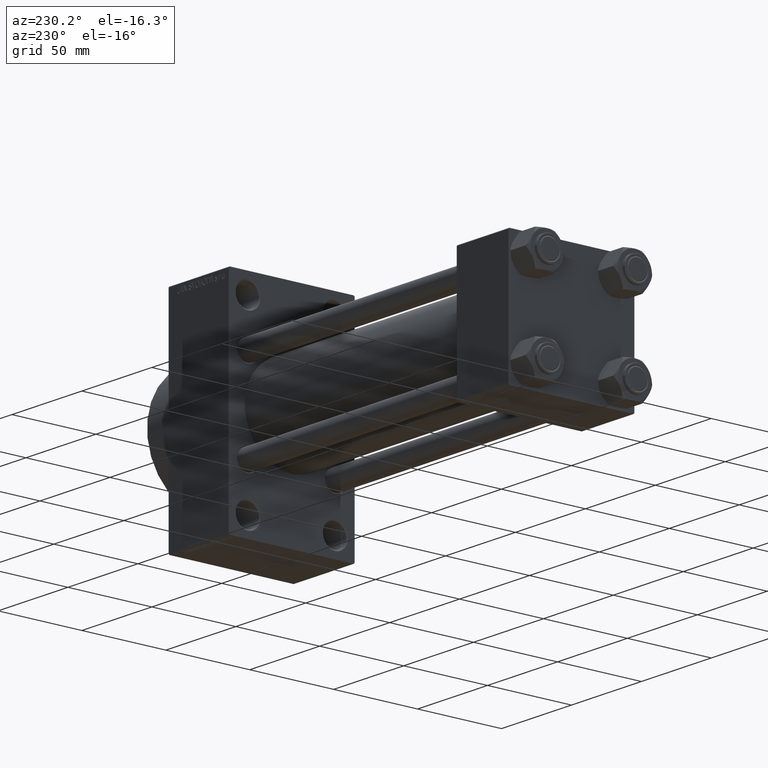
[diagram: clean part render]
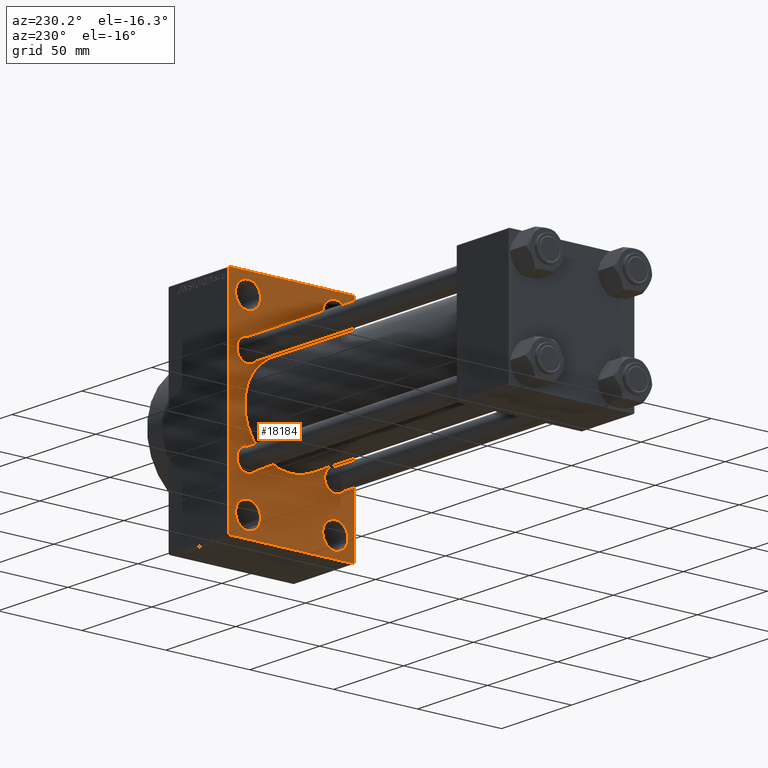
[diagram: same view with one face highlighted and labeled with its STEP entity id]
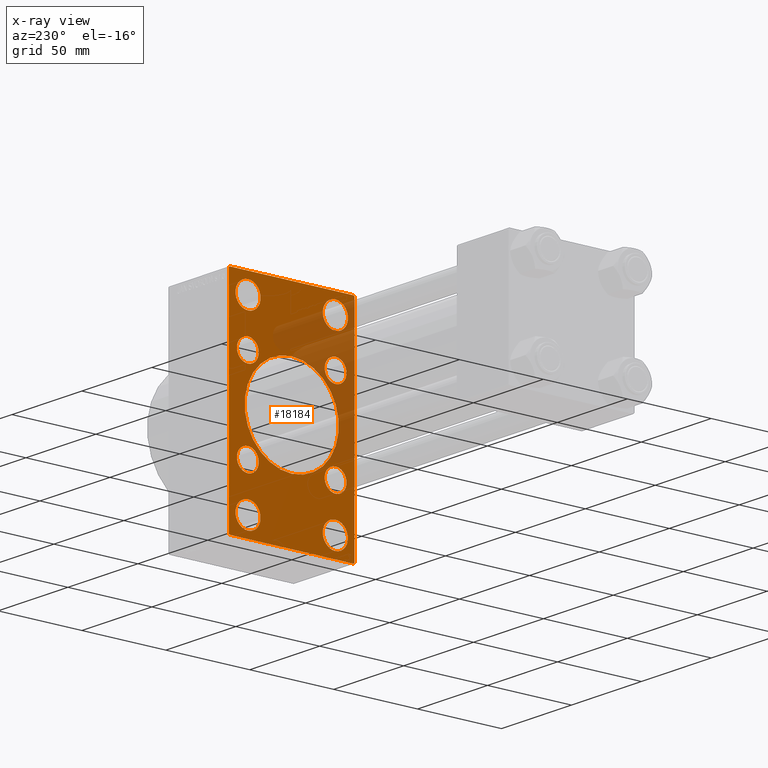
[diagram: x-ray of the same camera — body ghosted, the highlighted face saturated]
A machine part, auxiliary view. The second image highlights one B-rep face of the part: STEP entity #18184.
The next image is the same camera in x-ray: the body ghosted, the highlighted face saturated — about 23% of this face is hidden behind the body in this view.
In plain terms, the highlighted planar face has unit normal (-1, 0, 0).
Its self-contained STEP definition (entity closure, byte-faithful):
#70 = VECTOR ( 'NONE', #35666, 1000.000000000000000 ) ;
#422 = EDGE_CURVE ( 'NONE', #27337, #9450, #12563, .T. ) ;
#612 = CARTESIAN_POINT ( 'NONE',  ( 200.0000000000000000, 26.00000000000000000, -52.49999999999999289 ) ) ;
#889 = DIRECTION ( 'NONE',  ( 0.000000000000000000, -5.421010862427522170E-17, -1.000000000000000000 ) ) ;
#1216 = ORIENTED_EDGE ( 'NONE', *, *, #25462, .F. ) ;
#1446 = DIRECTION ( 'NONE',  ( 1.000000000000000000, 0.000000000000000000, 0.000000000000000000 ) ) ;
#1869 = CIRCLE ( 'NONE', #42250, 7.500000000000007105 ) ;
#1909 = EDGE_CURVE ( 'NONE', #15265, #4438, #3428, .T. ) ;
#2166 = CARTESIAN_POINT ( 'NONE',  ( 200.0000000000000000, -37.49999999999999289, 63.50000000000000000 ) ) ;
#2232 = EDGE_CURVE ( 'NONE', #34917, #8458, #10821, .T. ) ;
#2305 = CARTESIAN_POINT ( 'NONE',  ( 200.0000000000000000, 50.49999999999998579, 50.49999999999998579 ) ) ;
#2389 = DIRECTION ( 'NONE',  ( 1.000000000000000000, -0.000000000000000000, 0.000000000000000000 ) ) ;
#2414 = AXIS2_PLACEMENT_3D ( 'NONE', #13829, #2389, #27920 ) ;
#2847 = DIRECTION ( 'NONE',  ( 1.000000000000000000, -0.000000000000000000, 0.000000000000000000 ) ) ;
#2925 = DIRECTION ( 'NONE',  ( 1.000000000000000000, -0.000000000000000000, 0.000000000000000000 ) ) ;
#3276 = EDGE_LOOP ( 'NONE', ( #24197, #15807 ) ) ;
#3322 = DIRECTION ( 'NONE',  ( -0.000000000000000000, 0.7071067811865524577, 0.7071067811865426878 ) ) ;
#3428 = CIRCLE ( 'NONE', #15628, 6.500000000000008882 ) ;
#3592 = VERTEX_POINT ( 'NONE', #16032 ) ;
#3644 = FACE_BOUND ( 'NONE', #3276, .T. ) ;
#4114 = FACE_BOUND ( 'NONE', #25233, .T. ) ;
#4207 = EDGE_CURVE ( 'NONE', #4438, #15265, #17982, .T. ) ;
#4438 = VERTEX_POINT ( 'NONE', #44703 ) ;
#4572 = DIRECTION ( 'NONE',  ( 0.000000000000000000, -0.7071067811865376918, 0.7071067811865573427 ) ) ;
#4778 = CARTESIAN_POINT ( 'NONE',  ( 200.0000000000000000, -37.49999999999999289, -63.50000000000002842 ) ) ;
#4882 = DIRECTION ( 'NONE',  ( 1.000000000000000000, -0.000000000000000000, 0.000000000000000000 ) ) ;
#4891 = VERTEX_POINT ( 'NONE', #31202 ) ;
#5235 = CIRCLE ( 'NONE', #31934, 6.500000000000008882 ) ;
#5236 = CIRCLE ( 'NONE', #44114, 7.500000000000007105 ) ;
#5297 = CIRCLE ( 'NONE', #16094, 7.500000000000007105 ) ;
#5373 = AXIS2_PLACEMENT_3D ( 'NONE', #15335, #37066, #18680 ) ;
#5473 = AXIS2_PLACEMENT_3D ( 'NONE', #20763, #13356, #38691 ) ;
#5607 = EDGE_LOOP ( 'NONE', ( #6280, #40809 ) ) ;
#5671 = DIRECTION ( 'NONE',  ( 0.000000000000000000, 0.000000000000000000, -1.000000000000000000 ) ) ;
#5781 = DIRECTION ( 'NONE',  ( 0.000000000000000000, 0.000000000000000000, 1.000000000000000000 ) ) ;
#5864 = CARTESIAN_POINT ( 'NONE',  ( 200.0000000000000000, 37.00000000000000000, 63.99999999999998579 ) ) ;
#6280 = ORIENTED_EDGE ( 'NONE', *, *, #34890, .T. ) ;
#6469 = DIRECTION ( 'NONE',  ( 1.000000000000000000, -0.000000000000000000, 0.000000000000000000 ) ) ;
#6493 = DIRECTION ( 'NONE',  ( 1.000000000000000000, -0.000000000000000000, 0.000000000000000000 ) ) ;
#6598 = ORIENTED_EDGE ( 'NONE', *, *, #21428, .T. ) ;
#6963 = AXIS2_PLACEMENT_3D ( 'NONE', #39439, #12952, #5781 ) ;
#7441 = VERTEX_POINT ( 'NONE', #24727 ) ;
#7788 = DIRECTION ( 'NONE',  ( 1.000000000000000000, -0.000000000000000000, 0.000000000000000000 ) ) ;
#8051 = AXIS2_PLACEMENT_3D ( 'NONE', #25712, #7788, #36935 ) ;
#8157 = FACE_BOUND ( 'NONE', #27494, .T. ) ;
#8458 = VERTEX_POINT ( 'NONE', #25691 ) ;
#8522 = CARTESIAN_POINT ( 'NONE',  ( 200.0000000000000000, -26.14999999999999147, 26.15000000000000924 ) ) ;
#8851 = ORIENTED_EDGE ( 'NONE', *, *, #4207, .T. ) ;
#9450 = VERTEX_POINT ( 'NONE', #19082 ) ;
#9478 = CARTESIAN_POINT ( 'NONE',  ( 200.0000000000000000, -37.49999999999999289, 63.99999999999997158 ) ) ;
#9499 = VERTEX_POINT ( 'NONE', #31870 ) ;
#9583 = EDGE_CURVE ( 'NONE', #31777, #29911, #37898, .T. ) ;
#9755 = ORIENTED_EDGE ( 'NONE', *, *, #11821, .T. ) ;
#9762 = EDGE_CURVE ( 'NONE', #30605, #23036, #41754, .T. ) ;
#9892 = VECTOR ( 'NONE', #4572, 1000.000000000000114 ) ;
#9992 = LINE ( 'NONE', #39616, #46538 ) ;
#10090 = ORIENTED_EDGE ( 'NONE', *, *, #14929, .T. ) ;
#10237 = EDGE_CURVE ( 'NONE', #23503, #4891, #21383, .T. ) ;
#10298 = DIRECTION ( 'NONE',  ( 0.000000000000000000, 0.000000000000000000, 1.000000000000000000 ) ) ;
#10553 = ORIENTED_EDGE ( 'NONE', *, *, #19358, .F. ) ;
#10821 = LINE ( 'NONE', #24685, #37796 ) ;
#11082 = VERTEX_POINT ( 'NONE', #41076 ) ;
#11214 = VECTOR ( 'NONE', #24251, 1000.000000000000114 ) ;
#11513 = DIRECTION ( 'NONE',  ( 0.000000000000000000, 0.000000000000000000, 1.000000000000000000 ) ) ;
#11642 = EDGE_CURVE ( 'NONE', #23036, #30605, #24295, .T. ) ;
#11821 = EDGE_CURVE ( 'NONE', #18621, #7441, #5235, .T. ) ;
#12079 = LINE ( 'NONE', #18790, #23586 ) ;
#12174 = CARTESIAN_POINT ( 'NONE',  ( 200.0000000000000000, 26.00000000000000000, 60.00000000000000000 ) ) ;
#12229 = CARTESIAN_POINT ( 'NONE',  ( 200.0000000000000000, -26.14999999999999147, -26.15000000000000924 ) ) ;
#12397 = CARTESIAN_POINT ( 'NONE',  ( 200.0000000000000000, -26.14999999999999147, -19.65000000000000213 ) ) ;
#12416 = CARTESIAN_POINT ( 'NONE',  ( 200.0000000000000000, -2.602085213965210642E-15, 0.000000000000000000 ) ) ;
#12563 = CIRCLE ( 'NONE', #23237, 6.500000000000008882 ) ;
#12896 = ORIENTED_EDGE ( 'NONE', *, *, #25128, .T. ) ;
#12952 = DIRECTION ( 'NONE',  ( 1.000000000000000000, -0.000000000000000000, 0.000000000000000000 ) ) ;
#13275 = ORIENTED_EDGE ( 'NONE', *, *, #16701, .T. ) ;
#13356 = DIRECTION ( 'NONE',  ( 1.000000000000000000, -0.000000000000000000, 0.000000000000000000 ) ) ;
#13559 = ORIENTED_EDGE ( 'NONE', *, *, #43589, .T. ) ;
#13574 = DIRECTION ( 'NONE',  ( 0.000000000000000000, 0.000000000000000000, 1.000000000000000000 ) ) ;
#13741 = CARTESIAN_POINT ( 'NONE',  ( 200.0000000000000000, -25.99999999999999645, 60.00000000000000711 ) ) ;
#13795 = EDGE_CURVE ( 'NONE', #9450, #27337, #22766, .T. ) ;
#13829 = CARTESIAN_POINT ( 'NONE',  ( 200.0000000000000000, -26.14999999999999147, -26.15000000000000924 ) ) ;
#13944 = DIRECTION ( 'NONE',  ( -0.000000000000000000, -0.7071067811865574537, -0.7071067811865376918 ) ) ;
#13954 = CARTESIAN_POINT ( 'NONE',  ( 200.0000000000000000, -25.99999999999999645, -52.49999999999999289 ) ) ;
#14027 = VERTEX_POINT ( 'NONE', #2166 ) ;
#14062 = ORIENTED_EDGE ( 'NONE', *, *, #25096, .T. ) ;
#14132 = CARTESIAN_POINT ( 'NONE',  ( 200.0000000000000000, 26.14999999999999858, 26.15000000000000213 ) ) ;
#14339 = EDGE_CURVE ( 'NONE', #4891, #34917, #12079, .T. ) ;
#14499 = DIRECTION ( 'NONE',  ( 0.000000000000000000, 0.000000000000000000, 1.000000000000000000 ) ) ;
#14584 = CARTESIAN_POINT ( 'NONE',  ( 200.0000000000000000, 26.00000000000000000, 52.49999999999999289 ) ) ;
#14606 = CIRCLE ( 'NONE', #2414, 6.500000000000008882 ) ;
#14929 = EDGE_CURVE ( 'NONE', #8458, #37924, #32061, .T. ) ;
#15265 = VERTEX_POINT ( 'NONE', #32475 ) ;
#15335 = CARTESIAN_POINT ( 'NONE',  ( 200.0000000000000000, 0.000000000000000000, 0.000000000000000000 ) ) ;
#15628 = AXIS2_PLACEMENT_3D ( 'NONE', #19480, #40985, #40513 ) ;
#15736 = EDGE_CURVE ( 'NONE', #35290, #11082, #35033, .T. ) ;
#15807 = ORIENTED_EDGE ( 'NONE', *, *, #9583, .T. ) ;
#15989 = AXIS2_PLACEMENT_3D ( 'NONE', #12416, #1446, #38218 ) ;
#16032 = CARTESIAN_POINT ( 'NONE',  ( 200.0000000000000000, 26.00000000000000000, 44.99999999999998579 ) ) ;
#16094 = AXIS2_PLACEMENT_3D ( 'NONE', #28373, #2847, #13574 ) ;
#16699 = VECTOR ( 'NONE', #36341, 1000.000000000000000 ) ;
#16701 = EDGE_CURVE ( 'NONE', #37924, #35005, #23429, .T. ) ;
#16703 = CIRCLE ( 'NONE', #41119, 28.00000000000000000 ) ;
#17510 = AXIS2_PLACEMENT_3D ( 'NONE', #25477, #18087, #14499 ) ;
#17982 = CIRCLE ( 'NONE', #8051, 6.500000000000008882 ) ;
#17987 = DIRECTION ( 'NONE',  ( 1.000000000000000000, -0.000000000000000000, 0.000000000000000000 ) ) ;
#18021 = CARTESIAN_POINT ( 'NONE',  ( 200.0000000000000000, -25.99999999999999645, 52.50000000000000000 ) ) ;
#18046 = AXIS2_PLACEMENT_3D ( 'NONE', #13954, #30762, #45570 ) ;
#18087 = DIRECTION ( 'NONE',  ( 1.000000000000000000, -0.000000000000000000, 0.000000000000000000 ) ) ;
#18100 = ORIENTED_EDGE ( 'NONE', *, *, #422, .T. ) ;
#18148 = CARTESIAN_POINT ( 'NONE',  ( 200.0000000000000000, -25.99999999999999645, -44.99999999999998579 ) ) ;
#18184 = ADVANCED_FACE ( 'NONE', ( #28945, #3644, #47091, #43760, #8157, #40183, #4114, #22505, #33486, #32771 ), #22271, .T. ) ;
#18302 = VERTEX_POINT ( 'NONE', #45412 ) ;
#18513 = DIRECTION ( 'NONE',  ( 0.000000000000000000, 0.000000000000000000, -1.000000000000000000 ) ) ;
#18621 = VERTEX_POINT ( 'NONE', #12397 ) ;
#18680 = DIRECTION ( 'NONE',  ( -0.000000000000000000, 0.000000000000000000, 1.000000000000000000 ) ) ;
#18790 = CARTESIAN_POINT ( 'NONE',  ( 200.0000000000000000, 37.50000000000000000, 63.99999999999998579 ) ) ;
#18851 = EDGE_CURVE ( 'NONE', #29911, #31777, #5297, .T. ) ;
#19017 = CARTESIAN_POINT ( 'NONE',  ( 200.0000000000000000, 8.269258236473784371E-16, -28.00000000000000000 ) ) ;
#19082 = CARTESIAN_POINT ( 'NONE',  ( 200.0000000000000000, -26.14999999999999147, 19.65000000000000213 ) ) ;
#19228 = EDGE_LOOP ( 'NONE', ( #44943, #32928 ) ) ;
#19358 = EDGE_CURVE ( 'NONE', #23503, #41437, #20180, .T. ) ;
#19480 = CARTESIAN_POINT ( 'NONE',  ( 200.0000000000000000, 26.14999999999999858, -26.15000000000000213 ) ) ;
#19940 = VERTEX_POINT ( 'NONE', #19017 ) ;
#20180 = LINE ( 'NONE', #31154, #70 ) ;
#20763 = CARTESIAN_POINT ( 'NONE',  ( 200.0000000000000000, 26.00000000000000000, -52.49999999999999289 ) ) ;
#20779 = EDGE_LOOP ( 'NONE', ( #24185, #26474 ) ) ;
#21383 = LINE ( 'NONE', #2305, #11214 ) ;
#21428 = EDGE_CURVE ( 'NONE', #14027, #41437, #9992, .T. ) ;
#21835 = DIRECTION ( 'NONE',  ( 1.000000000000000000, -0.000000000000000000, 0.000000000000000000 ) ) ;
#21962 = CARTESIAN_POINT ( 'NONE',  ( 200.0000000000000000, -37.00000000000001421, 63.99999999999997158 ) ) ;
#21991 = DIRECTION ( 'NONE',  ( 0.000000000000000000, 0.000000000000000000, 1.000000000000000000 ) ) ;
#22271 = PLANE ( 'NONE',  #5373 ) ;
#22505 = FACE_BOUND ( 'NONE', #32433, .T. ) ;
#22766 = CIRCLE ( 'NONE', #41865, 6.500000000000008882 ) ;
#23036 = VERTEX_POINT ( 'NONE', #44639 ) ;
#23237 = AXIS2_PLACEMENT_3D ( 'NONE', #8522, #37196, #37440 ) ;
#23429 = LINE ( 'NONE', #34410, #9892 ) ;
#23503 = VERTEX_POINT ( 'NONE', #5864 ) ;
#23586 = VECTOR ( 'NONE', #889, 1000.000000000000000 ) ;
#23587 = EDGE_LOOP ( 'NONE', ( #10090, #13275, #1216, #6598, #10553, #26565, #31136, #42978 ) ) ;
#24185 = ORIENTED_EDGE ( 'NONE', *, *, #44292, .T. ) ;
#24197 = ORIENTED_EDGE ( 'NONE', *, *, #18851, .T. ) ;
#24251 = DIRECTION ( 'NONE',  ( 0.000000000000000000, 0.7071067811865474617, -0.7071067811865474617 ) ) ;
#24295 = CIRCLE ( 'NONE', #32684, 7.500000000000007105 ) ;
#24313 = ORIENTED_EDGE ( 'NONE', *, *, #13795, .T. ) ;
#24685 = CARTESIAN_POINT ( 'NONE',  ( 200.0000000000000000, 50.49999999999950973, -50.50000000000090949 ) ) ;
#24727 = CARTESIAN_POINT ( 'NONE',  ( 200.0000000000000000, -26.14999999999999147, -32.65000000000001990 ) ) ;
#24829 = EDGE_CURVE ( 'NONE', #3592, #44944, #44382, .T. ) ;
#25096 = EDGE_CURVE ( 'NONE', #9499, #18302, #34448, .T. ) ;
#25110 = DIRECTION ( 'NONE',  ( 0.000000000000000000, 0.000000000000000000, 1.000000000000000000 ) ) ;
#25128 = EDGE_CURVE ( 'NONE', #7441, #18621, #14606, .T. ) ;
#25233 = EDGE_LOOP ( 'NONE', ( #44478, #8851 ) ) ;
#25462 = EDGE_CURVE ( 'NONE', #14027, #35005, #28098, .T. ) ;
#25477 = CARTESIAN_POINT ( 'NONE',  ( 200.0000000000000000, 26.14999999999999858, 26.15000000000000213 ) ) ;
#25691 = CARTESIAN_POINT ( 'NONE',  ( 200.0000000000000000, 37.00000000000004974, -64.00000000000000000 ) ) ;
#25712 = CARTESIAN_POINT ( 'NONE',  ( 200.0000000000000000, 26.14999999999999858, -26.15000000000000213 ) ) ;
#25880 = DIRECTION ( 'NONE',  ( 0.000000000000000000, 0.000000000000000000, 1.000000000000000000 ) ) ;
#26474 = ORIENTED_EDGE ( 'NONE', *, *, #45052, .T. ) ;
#26565 = ORIENTED_EDGE ( 'NONE', *, *, #10237, .T. ) ;
#26629 = EDGE_LOOP ( 'NONE', ( #42504, #31895 ) ) ;
#26791 = DIRECTION ( 'NONE',  ( 0.000000000000000000, 0.000000000000000000, 1.000000000000000000 ) ) ;
#26940 = EDGE_LOOP ( 'NONE', ( #13559, #14062 ) ) ;
#27337 = VERTEX_POINT ( 'NONE', #28669 ) ;
#27494 = EDGE_LOOP ( 'NONE', ( #18100, #24313 ) ) ;
#27920 = DIRECTION ( 'NONE',  ( 0.000000000000000000, 0.000000000000000000, 1.000000000000000000 ) ) ;
#28018 = CARTESIAN_POINT ( 'NONE',  ( 200.0000000000000000, -2.602085213965210642E-15, 28.00000000000000000 ) ) ;
#28098 = LINE ( 'NONE', #9478, #36768 ) ;
#28373 = CARTESIAN_POINT ( 'NONE',  ( 200.0000000000000000, -25.99999999999999645, -52.49999999999999289 ) ) ;
#28669 = CARTESIAN_POINT ( 'NONE',  ( 200.0000000000000000, -26.14999999999999147, 32.65000000000001990 ) ) ;
#28945 = FACE_BOUND ( 'NONE', #19228, .T. ) ;
#29911 = VERTEX_POINT ( 'NONE', #18148 ) ;
#30132 = AXIS2_PLACEMENT_3D ( 'NONE', #14132, #2925, #25110 ) ;
#30136 = CARTESIAN_POINT ( 'NONE',  ( 200.0000000000000000, -25.99999999999999645, -60.00000000000000000 ) ) ;
#30605 = VERTEX_POINT ( 'NONE', #13741 ) ;
#30762 = DIRECTION ( 'NONE',  ( 1.000000000000000000, -0.000000000000000000, 0.000000000000000000 ) ) ;
#31083 = DIRECTION ( 'NONE',  ( 1.000000000000000000, -0.000000000000000000, 0.000000000000000000 ) ) ;
#31136 = ORIENTED_EDGE ( 'NONE', *, *, #14339, .T. ) ;
#31154 = CARTESIAN_POINT ( 'NONE',  ( 200.0000000000000000, 37.50000000000000000, 63.99999999999998579 ) ) ;
#31202 = CARTESIAN_POINT ( 'NONE',  ( 200.0000000000000000, 37.50000000000000000, 63.49999999999998579 ) ) ;
#31777 = VERTEX_POINT ( 'NONE', #30136 ) ;
#31870 = CARTESIAN_POINT ( 'NONE',  ( 200.0000000000000000, 26.00000000000000000, -60.00000000000000000 ) ) ;
#31895 = ORIENTED_EDGE ( 'NONE', *, *, #15736, .T. ) ;
#31934 = AXIS2_PLACEMENT_3D ( 'NONE', #12229, #31083, #26791 ) ;
#32061 = LINE ( 'NONE', #46617, #16699 ) ;
#32433 = EDGE_LOOP ( 'NONE', ( #9755, #12896 ) ) ;
#32475 = CARTESIAN_POINT ( 'NONE',  ( 200.0000000000000000, 26.14999999999999858, -19.64999999999999503 ) ) ;
#32684 = AXIS2_PLACEMENT_3D ( 'NONE', #39952, #17987, #11513 ) ;
#32771 = FACE_OUTER_BOUND ( 'NONE', #23587, .T. ) ;
#32928 = ORIENTED_EDGE ( 'NONE', *, *, #11642, .T. ) ;
#33486 = FACE_BOUND ( 'NONE', #20779, .T. ) ;
#34256 = DIRECTION ( 'NONE',  ( 0.000000000000000000, 0.000000000000000000, 1.000000000000000000 ) ) ;
#34410 = CARTESIAN_POINT ( 'NONE',  ( 200.0000000000000000, -50.50000000000054001, -50.49999999999913314 ) ) ;
#34448 = CIRCLE ( 'NONE', #5473, 7.500000000000007105 ) ;
#34890 = EDGE_CURVE ( 'NONE', #44944, #3592, #1869, .T. ) ;
#34917 = VERTEX_POINT ( 'NONE', #35602 ) ;
#35005 = VERTEX_POINT ( 'NONE', #4778 ) ;
#35033 = CIRCLE ( 'NONE', #17510, 6.500000000000008882 ) ;
#35290 = VERTEX_POINT ( 'NONE', #47005 ) ;
#35602 = CARTESIAN_POINT ( 'NONE',  ( 200.0000000000000000, 37.49999999999999289, -63.50000000000007105 ) ) ;
#35666 = DIRECTION ( 'NONE',  ( 0.000000000000000000, -1.000000000000000000, -1.850371707708594563E-16 ) ) ;
#35958 = DIRECTION ( 'NONE',  ( 1.000000000000000000, 0.000000000000000000, 0.000000000000000000 ) ) ;
#36341 = DIRECTION ( 'NONE',  ( 0.000000000000000000, -1.000000000000000000, -1.850371707708594563E-16 ) ) ;
#36768 = VECTOR ( 'NONE', #5671, 1000.000000000000000 ) ;
#36935 = DIRECTION ( 'NONE',  ( 0.000000000000000000, 0.000000000000000000, 1.000000000000000000 ) ) ;
#36994 = EDGE_CURVE ( 'NONE', #11082, #35290, #43103, .T. ) ;
#37066 = DIRECTION ( 'NONE',  ( -1.000000000000000000, 0.000000000000000000, -0.000000000000000000 ) ) ;
#37196 = DIRECTION ( 'NONE',  ( 1.000000000000000000, -0.000000000000000000, 0.000000000000000000 ) ) ;
#37440 = DIRECTION ( 'NONE',  ( 0.000000000000000000, 0.000000000000000000, 1.000000000000000000 ) ) ;
#37796 = VECTOR ( 'NONE', #13944, 999.9999999999998863 ) ;
#37898 = CIRCLE ( 'NONE', #18046, 7.500000000000007105 ) ;
#37924 = VERTEX_POINT ( 'NONE', #44718 ) ;
#38218 = DIRECTION ( 'NONE',  ( 0.000000000000000000, 0.000000000000000000, -1.000000000000000000 ) ) ;
#38691 = DIRECTION ( 'NONE',  ( 0.000000000000000000, 0.000000000000000000, 1.000000000000000000 ) ) ;
#39439 = CARTESIAN_POINT ( 'NONE',  ( 200.0000000000000000, 26.00000000000000000, 52.49999999999999289 ) ) ;
#39616 = CARTESIAN_POINT ( 'NONE',  ( 200.0000000000000000, -50.49999999999972999, 50.50000000000042633 ) ) ;
#39952 = CARTESIAN_POINT ( 'NONE',  ( 200.0000000000000000, -25.99999999999999645, 52.50000000000000000 ) ) ;
#40183 = FACE_BOUND ( 'NONE', #26629, .T. ) ;
#40513 = DIRECTION ( 'NONE',  ( 0.000000000000000000, 0.000000000000000000, 1.000000000000000000 ) ) ;
#40809 = ORIENTED_EDGE ( 'NONE', *, *, #24829, .T. ) ;
#40985 = DIRECTION ( 'NONE',  ( 1.000000000000000000, -0.000000000000000000, 0.000000000000000000 ) ) ;
#41076 = CARTESIAN_POINT ( 'NONE',  ( 200.0000000000000000, 26.14999999999999858, 32.65000000000001990 ) ) ;
#41119 = AXIS2_PLACEMENT_3D ( 'NONE', #43128, #35958, #18513 ) ;
#41147 = CIRCLE ( 'NONE', #15989, 28.00000000000000000 ) ;
#41437 = VERTEX_POINT ( 'NONE', #21962 ) ;
#41754 = CIRCLE ( 'NONE', #47046, 7.500000000000007105 ) ;
#41865 = AXIS2_PLACEMENT_3D ( 'NONE', #43033, #6493, #10298 ) ;
#42250 = AXIS2_PLACEMENT_3D ( 'NONE', #14584, #6469, #21991 ) ;
#42504 = ORIENTED_EDGE ( 'NONE', *, *, #36994, .T. ) ;
#42978 = ORIENTED_EDGE ( 'NONE', *, *, #2232, .T. ) ;
#43033 = CARTESIAN_POINT ( 'NONE',  ( 200.0000000000000000, -26.14999999999999147, 26.15000000000000924 ) ) ;
#43103 = CIRCLE ( 'NONE', #30132, 6.500000000000008882 ) ;
#43128 = CARTESIAN_POINT ( 'NONE',  ( 200.0000000000000000, -2.602085213965210642E-15, 0.000000000000000000 ) ) ;
#43589 = EDGE_CURVE ( 'NONE', #18302, #9499, #5236, .T. ) ;
#43760 = FACE_BOUND ( 'NONE', #5607, .T. ) ;
#44114 = AXIS2_PLACEMENT_3D ( 'NONE', #612, #4882, #34256 ) ;
#44292 = EDGE_CURVE ( 'NONE', #44415, #19940, #16703, .T. ) ;
#44382 = CIRCLE ( 'NONE', #6963, 7.500000000000007105 ) ;
#44415 = VERTEX_POINT ( 'NONE', #28018 ) ;
#44478 = ORIENTED_EDGE ( 'NONE', *, *, #1909, .T. ) ;
#44639 = CARTESIAN_POINT ( 'NONE',  ( 200.0000000000000000, -25.99999999999999645, 44.99999999999999289 ) ) ;
#44703 = CARTESIAN_POINT ( 'NONE',  ( 200.0000000000000000, 26.14999999999999858, -32.65000000000001279 ) ) ;
#44718 = CARTESIAN_POINT ( 'NONE',  ( 200.0000000000000000, -37.00000000000002132, -64.00000000000001421 ) ) ;
#44943 = ORIENTED_EDGE ( 'NONE', *, *, #9762, .T. ) ;
#44944 = VERTEX_POINT ( 'NONE', #12174 ) ;
#45052 = EDGE_CURVE ( 'NONE', #19940, #44415, #41147, .T. ) ;
#45412 = CARTESIAN_POINT ( 'NONE',  ( 200.0000000000000000, 26.00000000000000000, -44.99999999999998579 ) ) ;
#45570 = DIRECTION ( 'NONE',  ( 0.000000000000000000, 0.000000000000000000, 1.000000000000000000 ) ) ;
#46538 = VECTOR ( 'NONE', #3322, 1000.000000000000000 ) ;
#46617 = CARTESIAN_POINT ( 'NONE',  ( 200.0000000000000000, 37.49999999999999289, -64.00000000000000000 ) ) ;
#47005 = CARTESIAN_POINT ( 'NONE',  ( 200.0000000000000000, 26.14999999999999858, 19.64999999999999147 ) ) ;
#47046 = AXIS2_PLACEMENT_3D ( 'NONE', #18021, #21835, #25880 ) ;
#47091 = FACE_BOUND ( 'NONE', #26940, .T. ) ;